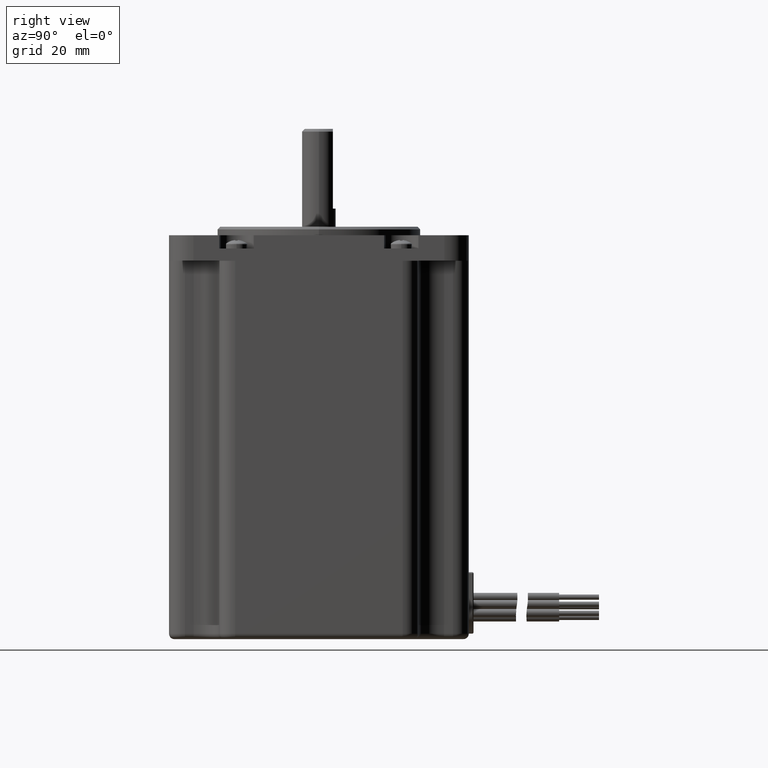
[diagram: clean part render]
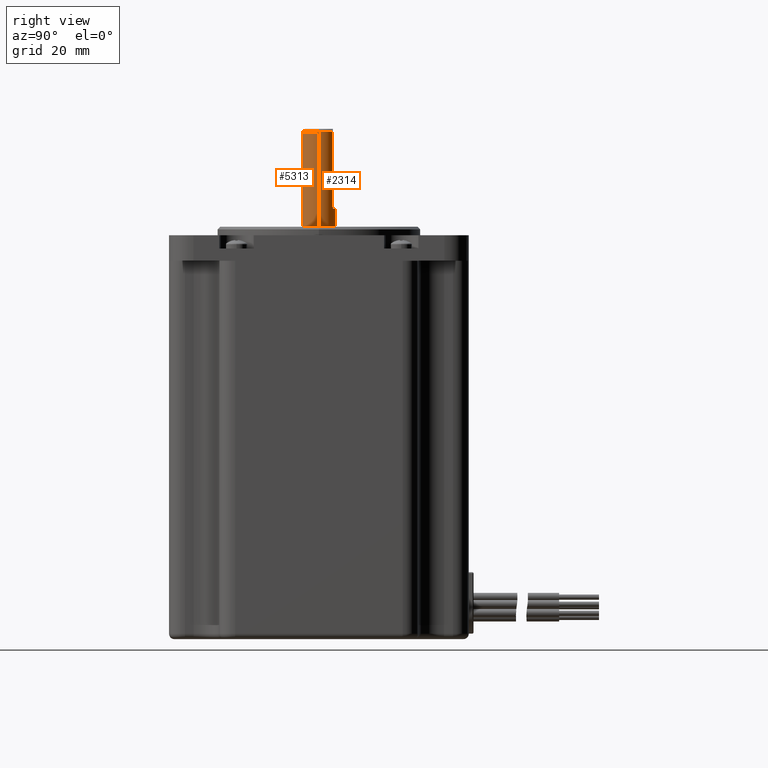
[diagram: same view with one multi-face feature highlighted, each face labeled with its STEP entity id]
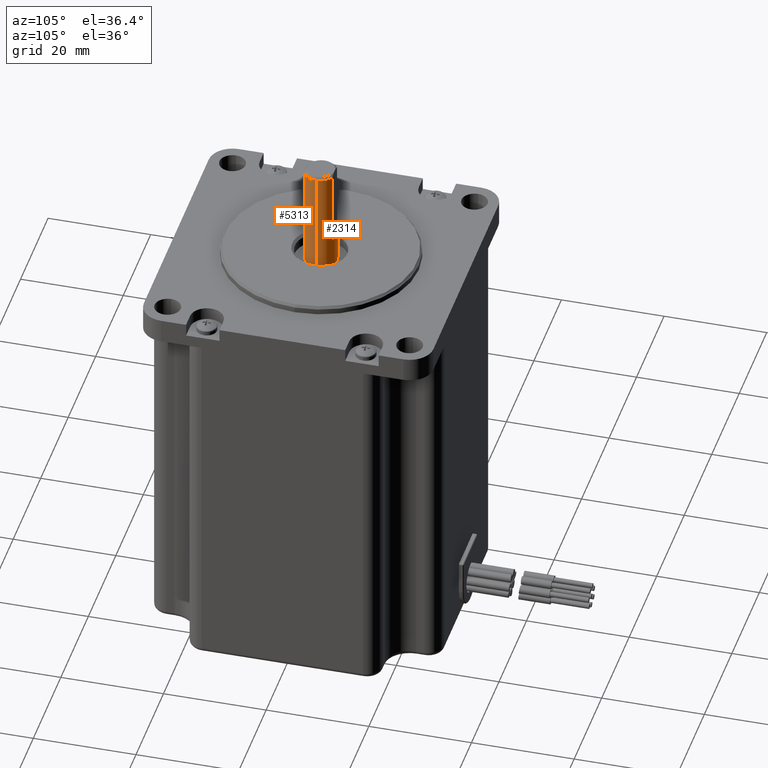
[diagram: same view with one multi-face feature highlighted, each face labeled with its STEP entity id]
A machine part, right view. The highlighted faces form ONE feature: a constant-radius fillet chain: 2 tangent blend faces with common blend radius 3.175 mm. The faces share edges in the B-rep.
A second angle (auxiliary view) of the same feature is appended — it is thin or edge-on in the first view.
Their STEP definitions:
[1] entity #5313 (Cylinder):
#310 = EDGE_CURVE ( 'NONE', #7875, #1964, #5818, .T. ) ;
#702 = ORIENTED_EDGE ( 'NONE', *, *, #310, .T. ) ;
#950 = LINE ( 'NONE', #1560, #2448 ) ;
#1009 = EDGE_CURVE ( 'NONE', #2413, #1964, #950, .T. ) ;
#1328 = CARTESIAN_POINT ( 'NONE',  ( -3.174999999999999800, 0.0000000000000000000, 28.98025612106915400 ) ) ;
#1532 = FACE_OUTER_BOUND ( 'NONE', #12144, .T. ) ;
#1560 = CARTESIAN_POINT ( 'NONE',  ( 3.174999999999999800, 3.888253587292846100E-016, 28.98025612106915400 ) ) ;
#1964 = VERTEX_POINT ( 'NONE', #2313 ) ;
#2277 = DIRECTION ( 'NONE',  ( 0.0000000000000000000, 0.0000000000000000000, -1.000000000000000000 ) ) ;
#2313 = CARTESIAN_POINT ( 'NONE',  ( 3.174999999999999800, 3.888253587292846100E-016, -36.39999999999999900 ) ) ;
#2373 = DIRECTION ( 'NONE',  ( 0.0000000000000000000, 0.0000000000000000000, 1.000000000000000000 ) ) ;
#2413 = VERTEX_POINT ( 'NONE', #2921 ) ;
#2448 = VECTOR ( 'NONE', #5230, 1000.000000000000000 ) ;
#2921 = CARTESIAN_POINT ( 'NONE',  ( 3.174999999999999800, 3.888253587292846100E-016, 19.49999999999999600 ) ) ;
#3137 = EDGE_CURVE ( 'NONE', #2413, #9540, #4397, .T. ) ;
#3392 = CARTESIAN_POINT ( 'NONE',  ( 0.0000000000000000000, 0.0000000000000000000, -36.39999999999999900 ) ) ;
#3431 = DIRECTION ( 'NONE',  ( -1.000000000000000000, 0.0000000000000000000, 0.0000000000000000000 ) ) ;
#3483 = ORIENTED_EDGE ( 'NONE', *, *, #3137, .T. ) ;
#4397 = CIRCLE ( 'NONE', #7011, 3.174999999999999800 ) ;
#4497 = ORIENTED_EDGE ( 'NONE', *, *, #1009, .F. ) ;
#5230 = DIRECTION ( 'NONE',  ( 0.0000000000000000000, 0.0000000000000000000, -1.000000000000000000 ) ) ;
#5291 = DIRECTION ( 'NONE',  ( 1.000000000000000000, 0.0000000000000000000, 0.0000000000000000000 ) ) ;
#5313 = ADVANCED_FACE ( 'NONE', ( #1532 ), #11921, .T. ) ;
#5818 = CIRCLE ( 'NONE', #10904, 3.174999999999999800 ) ;
#6294 = CARTESIAN_POINT ( 'NONE',  ( 0.0000000000000000000, 0.0000000000000000000, 19.49999999999999600 ) ) ;
#6502 = ORIENTED_EDGE ( 'NONE', *, *, #9504, .T. ) ;
#7011 = AXIS2_PLACEMENT_3D ( 'NONE', #6294, #8100, #5291 ) ;
#7166 = LINE ( 'NONE', #1328, #7301 ) ;
#7301 = VECTOR ( 'NONE', #2277, 1000.000000000000000 ) ;
#7574 = DIRECTION ( 'NONE',  ( -1.000000000000000000, 0.0000000000000000000, 0.0000000000000000000 ) ) ;
#7875 = VERTEX_POINT ( 'NONE', #8823 ) ;
#7882 = CARTESIAN_POINT ( 'NONE',  ( -3.174999999999999800, 0.0000000000000000000, 19.49999999999999600 ) ) ;
#8100 = DIRECTION ( 'NONE',  ( -0.0000000000000000000, -0.0000000000000000000, -1.000000000000000000 ) ) ;
#8411 = CARTESIAN_POINT ( 'NONE',  ( 0.0000000000000000000, 0.0000000000000000000, 28.98025612106915400 ) ) ;
#8823 = CARTESIAN_POINT ( 'NONE',  ( -3.174999999999999800, 0.0000000000000000000, -36.39999999999999900 ) ) ;
#9015 = AXIS2_PLACEMENT_3D ( 'NONE', #8411, #9400, #7574 ) ;
#9400 = DIRECTION ( 'NONE',  ( 0.0000000000000000000, 0.0000000000000000000, -1.000000000000000000 ) ) ;
#9504 = EDGE_CURVE ( 'NONE', #9540, #7875, #7166, .T. ) ;
#9540 = VERTEX_POINT ( 'NONE', #7882 ) ;
#10904 = AXIS2_PLACEMENT_3D ( 'NONE', #3392, #2373, #3431 ) ;
#11921 = CYLINDRICAL_SURFACE ( 'NONE', #9015, 3.174999999999999800 ) ;
#12144 = EDGE_LOOP ( 'NONE', ( #4497, #3483, #6502, #702 ) ) ;
[2] entity #2314 (Cylinder):
#121 = EDGE_CURVE ( 'NONE', #6973, #2413, #11975, .T. ) ;
#457 = DIRECTION ( 'NONE',  ( -0.0000000000000000000, -0.0000000000000000000, 1.000000000000000000 ) ) ;
#480 = VECTOR ( 'NONE', #457, 1000.000000000000000 ) ;
#786 = EDGE_CURVE ( 'NONE', #6647, #6684, #4769, .T. ) ;
#862 = CARTESIAN_POINT ( 'NONE',  ( 1.786057109949176000, 2.624999999999999100, 5.000000000000000900 ) ) ;
#895 = AXIS2_PLACEMENT_3D ( 'NONE', #8956, #4253, #9721 ) ;
#950 = LINE ( 'NONE', #1560, #2448 ) ;
#1009 = EDGE_CURVE ( 'NONE', #2413, #1964, #950, .T. ) ;
#1328 = CARTESIAN_POINT ( 'NONE',  ( -3.174999999999999800, 0.0000000000000000000, 28.98025612106915400 ) ) ;
#1560 = CARTESIAN_POINT ( 'NONE',  ( 3.174999999999999800, 3.888253587292846100E-016, 28.98025612106915400 ) ) ;
#1765 = AXIS2_PLACEMENT_3D ( 'NONE', #11228, #8440, #11271 ) ;
#1964 = VERTEX_POINT ( 'NONE', #2313 ) ;
#2277 = DIRECTION ( 'NONE',  ( 0.0000000000000000000, 0.0000000000000000000, -1.000000000000000000 ) ) ;
#2309 = CARTESIAN_POINT ( 'NONE',  ( 0.0000000000000000000, 0.0000000000000000000, 19.49999999999999600 ) ) ;
#2313 = CARTESIAN_POINT ( 'NONE',  ( 3.174999999999999800, 3.888253587292846100E-016, -36.39999999999999900 ) ) ;
#2314 = ADVANCED_FACE ( 'NONE', ( #4569 ), #7375, .T. ) ;
#2413 = VERTEX_POINT ( 'NONE', #2921 ) ;
#2448 = VECTOR ( 'NONE', #5230, 1000.000000000000000 ) ;
#2921 = CARTESIAN_POINT ( 'NONE',  ( 3.174999999999999800, 3.888253587292846100E-016, 19.49999999999999600 ) ) ;
#4253 = DIRECTION ( 'NONE',  ( -0.0000000000000000000, -0.0000000000000000000, -1.000000000000000000 ) ) ;
#4281 = VECTOR ( 'NONE', #7831, 1000.000000000000000 ) ;
#4313 = AXIS2_PLACEMENT_3D ( 'NONE', #9782, #9822, #7021 ) ;
#4569 = FACE_OUTER_BOUND ( 'NONE', #9839, .T. ) ;
#4769 = CIRCLE ( 'NONE', #4313, 3.174999999999999800 ) ;
#4867 = EDGE_CURVE ( 'NONE', #1964, #7875, #7411, .T. ) ;
#4924 = CARTESIAN_POINT ( 'NONE',  ( -1.786057109949176000, 2.624999999999999100, 19.49999999999999600 ) ) ;
#5103 = CARTESIAN_POINT ( 'NONE',  ( 1.786057109949176000, 2.624999999999999100, 5.000000000000000900 ) ) ;
#5192 = DIRECTION ( 'NONE',  ( -0.0000000000000000000, -0.0000000000000000000, -1.000000000000000000 ) ) ;
#5200 = CARTESIAN_POINT ( 'NONE',  ( -1.786057109949176000, 2.624999999999999100, 5.000000000000000900 ) ) ;
#5230 = DIRECTION ( 'NONE',  ( 0.0000000000000000000, 0.0000000000000000000, -1.000000000000000000 ) ) ;
#6647 = VERTEX_POINT ( 'NONE', #862 ) ;
#6684 = VERTEX_POINT ( 'NONE', #7470 ) ;
#6973 = VERTEX_POINT ( 'NONE', #9989 ) ;
#7021 = DIRECTION ( 'NONE',  ( 1.000000000000000000, 0.0000000000000000000, 0.0000000000000000000 ) ) ;
#7132 = ORIENTED_EDGE ( 'NONE', *, *, #12001, .T. ) ;
#7166 = LINE ( 'NONE', #1328, #7301 ) ;
#7233 = AXIS2_PLACEMENT_3D ( 'NONE', #2309, #5192, #10982 ) ;
#7301 = VECTOR ( 'NONE', #2277, 1000.000000000000000 ) ;
#7375 = CYLINDRICAL_SURFACE ( 'NONE', #8966, 3.174999999999999800 ) ;
#7411 = CIRCLE ( 'NONE', #1765, 3.174999999999999800 ) ;
#7470 = CARTESIAN_POINT ( 'NONE',  ( -1.786057109949176000, 2.624999999999999100, 5.000000000000000900 ) ) ;
#7629 = CIRCLE ( 'NONE', #895, 3.174999999999999800 ) ;
#7831 = DIRECTION ( 'NONE',  ( -0.0000000000000000000, -0.0000000000000000000, 1.000000000000000000 ) ) ;
#7875 = VERTEX_POINT ( 'NONE', #8823 ) ;
#7882 = CARTESIAN_POINT ( 'NONE',  ( -3.174999999999999800, 0.0000000000000000000, 19.49999999999999600 ) ) ;
#7938 = VERTEX_POINT ( 'NONE', #4924 ) ;
#8440 = DIRECTION ( 'NONE',  ( 0.0000000000000000000, 0.0000000000000000000, 1.000000000000000000 ) ) ;
#8823 = CARTESIAN_POINT ( 'NONE',  ( -3.174999999999999800, 0.0000000000000000000, -36.39999999999999900 ) ) ;
#8852 = LINE ( 'NONE', #5200, #480 ) ;
#8956 = CARTESIAN_POINT ( 'NONE',  ( 0.0000000000000000000, 0.0000000000000000000, 19.49999999999999600 ) ) ;
#8966 = AXIS2_PLACEMENT_3D ( 'NONE', #9221, #10189, #9142 ) ;
#9079 = ORIENTED_EDGE ( 'NONE', *, *, #4867, .T. ) ;
#9142 = DIRECTION ( 'NONE',  ( -1.000000000000000000, 0.0000000000000000000, 0.0000000000000000000 ) ) ;
#9221 = CARTESIAN_POINT ( 'NONE',  ( 0.0000000000000000000, 0.0000000000000000000, 28.98025612106915400 ) ) ;
#9257 = ORIENTED_EDGE ( 'NONE', *, *, #786, .F. ) ;
#9504 = EDGE_CURVE ( 'NONE', #9540, #7875, #7166, .T. ) ;
#9540 = VERTEX_POINT ( 'NONE', #7882 ) ;
#9721 = DIRECTION ( 'NONE',  ( 1.000000000000000000, 1.776356839400250500E-015, 0.0000000000000000000 ) ) ;
#9782 = CARTESIAN_POINT ( 'NONE',  ( 0.0000000000000000000, 0.0000000000000000000, 5.000000000000000900 ) ) ;
#9822 = DIRECTION ( 'NONE',  ( 0.0000000000000000000, 0.0000000000000000000, 1.000000000000000000 ) ) ;
#9839 = EDGE_LOOP ( 'NONE', ( #11867, #10751, #9079, #10385, #7132, #10590, #9257, #10680 ) ) ;
#9989 = CARTESIAN_POINT ( 'NONE',  ( 1.786057109949176000, 2.624999999999999100, 19.49999999999999600 ) ) ;
#10189 = DIRECTION ( 'NONE',  ( 0.0000000000000000000, 0.0000000000000000000, -1.000000000000000000 ) ) ;
#10385 = ORIENTED_EDGE ( 'NONE', *, *, #9504, .F. ) ;
#10590 = ORIENTED_EDGE ( 'NONE', *, *, #10836, .F. ) ;
#10680 = ORIENTED_EDGE ( 'NONE', *, *, #11392, .T. ) ;
#10751 = ORIENTED_EDGE ( 'NONE', *, *, #1009, .T. ) ;
#10836 = EDGE_CURVE ( 'NONE', #6684, #7938, #8852, .T. ) ;
#10982 = DIRECTION ( 'NONE',  ( 1.000000000000000000, 1.776356839400250500E-015, 0.0000000000000000000 ) ) ;
#11008 = LINE ( 'NONE', #5103, #4281 ) ;
#11228 = CARTESIAN_POINT ( 'NONE',  ( 0.0000000000000000000, 0.0000000000000000000, -36.39999999999999900 ) ) ;
#11271 = DIRECTION ( 'NONE',  ( -1.000000000000000000, 0.0000000000000000000, 0.0000000000000000000 ) ) ;
#11392 = EDGE_CURVE ( 'NONE', #6647, #6973, #11008, .T. ) ;
#11867 = ORIENTED_EDGE ( 'NONE', *, *, #121, .T. ) ;
#11975 = CIRCLE ( 'NONE', #7233, 3.174999999999999800 ) ;
#12001 = EDGE_CURVE ( 'NONE', #9540, #7938, #7629, .T. ) ;